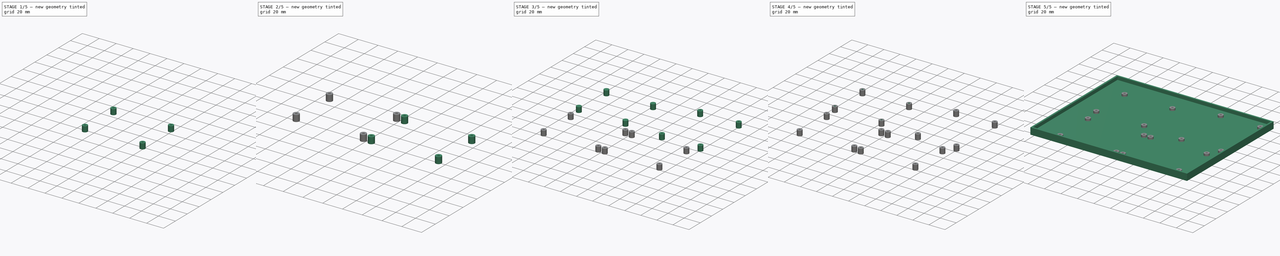
[diagram: build sequence overview — one tinted view per stage of 5, left to right]
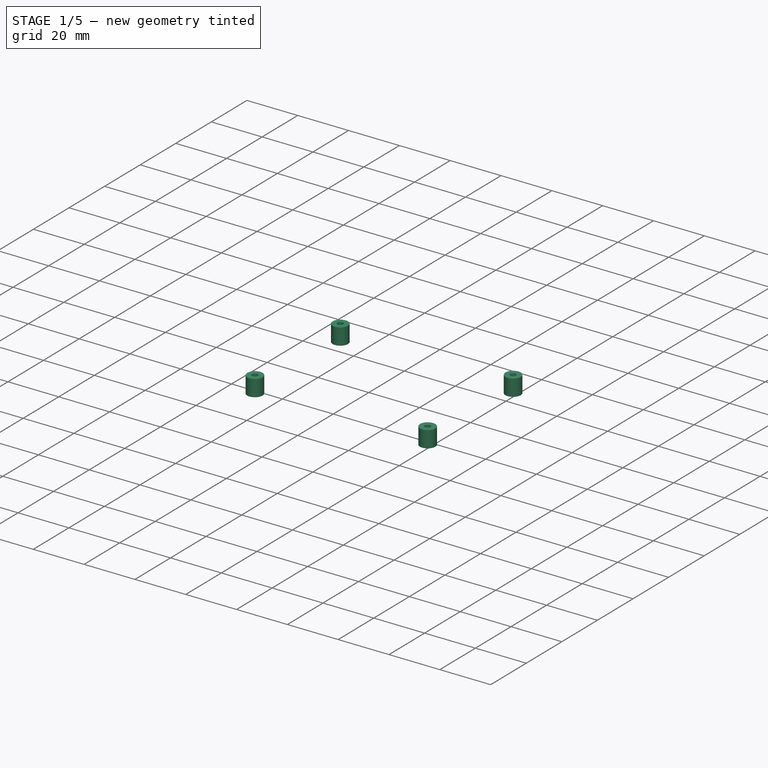
[diagram: stage 1 of 5 — iso view after this stage's code; geometry added in this stage tinted green]
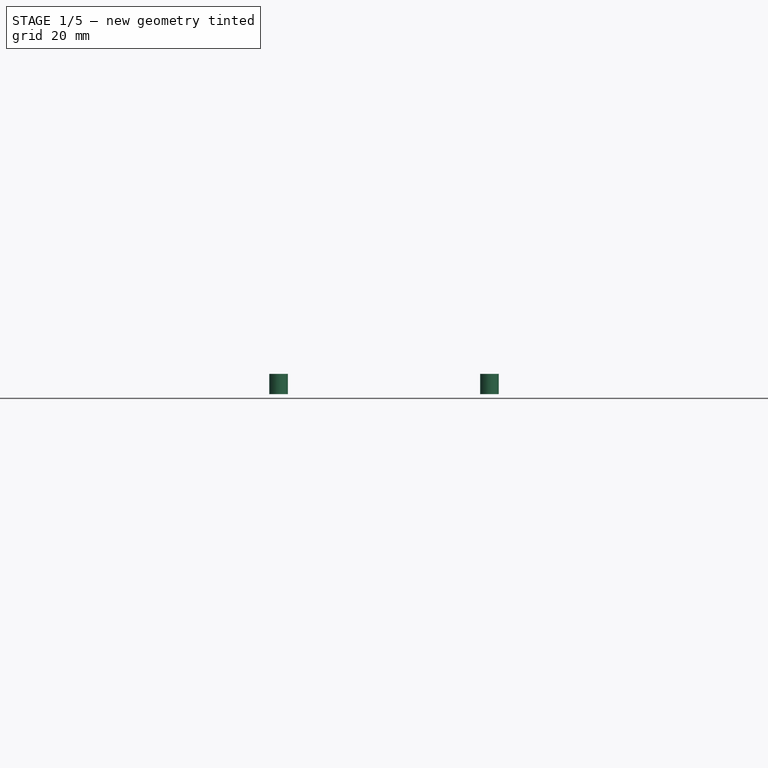
[diagram: stage 1 of 5 — front view after this stage's code; geometry added in this stage tinted green]
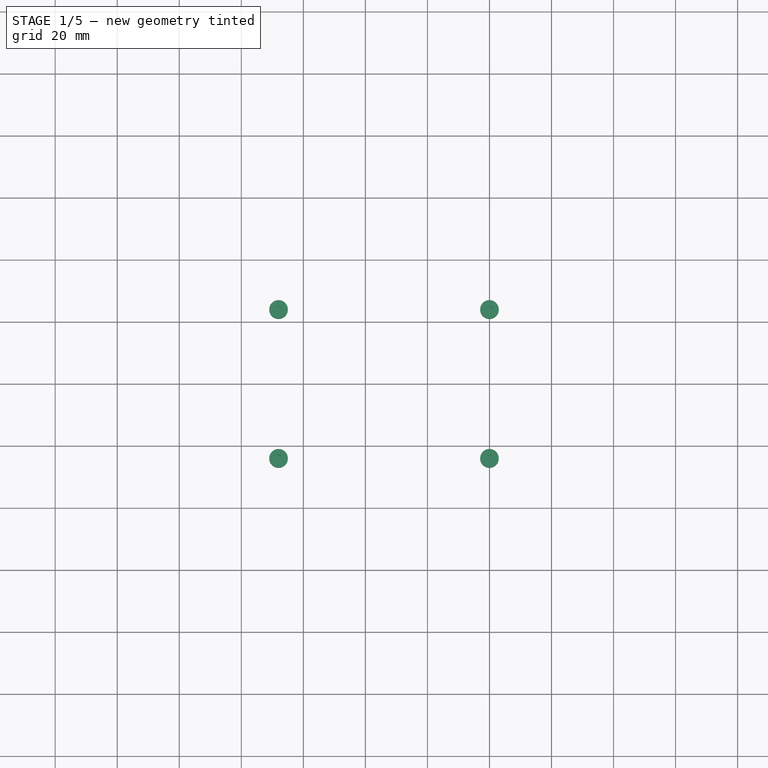
[diagram: stage 1 of 5 — top view after this stage's code; geometry added in this stage tinted green]
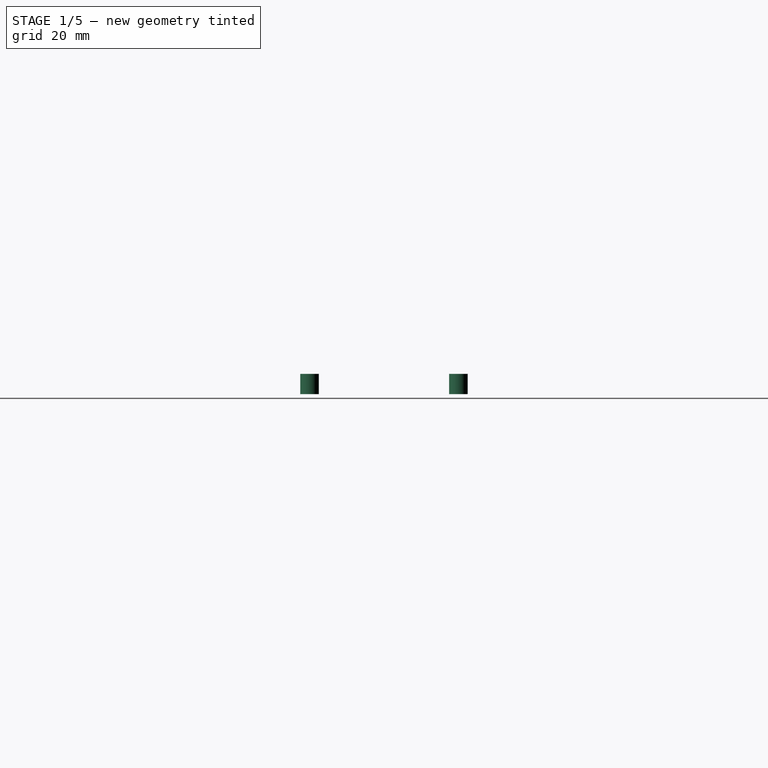
[diagram: stage 1 of 5 — right view after this stage's code; geometry added in this stage tinted green]
FCSTD DOCUMENT  (FreeCAD 0.15R4671 (Git))
Label: Test01
License: All rights reserved
LicenseURL: http://en.wikipedia.org/wiki/All_rights_reserved
objects: Sketcher::SketchObject×10, PartDesign::Pad×10, Part::Cut×4, Part::MultiFuse×2
note: 36 computed .brp shape members not serialized (recipe doc carries the construction recipe); baked Part::Feature solids carry a one-line shape summary decoded from their .brp

FEATURE [Sketcher::SketchObject] Sketch008  label="Relay1 Inner holes002"
  Placement = pos=(0,0,2.5) rot=(0,0,1;0rad)
  sketch-geometry (4):
    g0: Circle CenterX=32 CenterY=-96 CenterZ=0 NormalX=0 NormalY=0 NormalZ=1 Radius=1.1
    g1: Circle CenterX=100 CenterY=-96 CenterZ=0 NormalX=0 NormalY=0 NormalZ=1 Radius=1.1
    g2: Circle CenterX=32 CenterY=-144 CenterZ=0 NormalX=0 NormalY=0 NormalZ=1 Radius=1.1
    g3: Circle CenterX=100 CenterY=-144 CenterZ=0 NormalX=0 NormalY=0 NormalZ=1 Radius=1.1
  constraints (12):
    c: Distance(g0,g1) = 68
    c: DistanceY(g0,g1) = 0
    c: DistanceY(g2,g3) = 0
    c: DistanceX(g2,g0) = 0
    c: DistanceX(g3,g1) = 0
    c: DistanceY(g2,g0) = 48
    c: Radius(g2) = 1.1
    c: Equal(g2,g0)
    c: Equal(g2,g1)
    c: Equal(g2,g3)
    c: DistanceX(g-1,g1) = 100
    c: DistanceY(g-1,g0) = -96
FEATURE [Sketcher::SketchObject] Sketch009  label="Relay1 Outer holes002"
  sketch-geometry (4):
    g0: Circle CenterX=32 CenterY=-96 CenterZ=0 NormalX=0 NormalY=0 NormalZ=1 Radius=3
    g1: Circle CenterX=100 CenterY=-96 CenterZ=0 NormalX=0 NormalY=0 NormalZ=1 Radius=3
    g2: Circle CenterX=32 CenterY=-144 CenterZ=0 NormalX=0 NormalY=0 NormalZ=1 Radius=3
    g3: Circle CenterX=100 CenterY=-144 CenterZ=0 NormalX=0 NormalY=0 NormalZ=1 Radius=3
  constraints (12):
    c: Distance(g0,g1) = 68
    c: DistanceY(g0,g1) = 0
    c: DistanceY(g2,g3) = 0
    c: DistanceX(g2,g0) = 0
    c: DistanceX(g3,g1) = 0
    c: DistanceY(g2,g0) = 48
    c: Radius(g2) = 3
    c: Equal(g2,g0)
    c: Equal(g2,g1)
    c: Equal(g2,g3)
    c: DistanceX(g-1,g1) = 100
    c: DistanceY(g-1,g0) = -96
FEATURE [PartDesign::Pad] Pad008
  Length = 6.5
  Length2 = 100
  Placement = pos=(0,0,2.5) rot=(0,0,1;0rad)
  Sketch = -> Sketch008
  Type = 0
FEATURE [PartDesign::Pad] Pad009
  Length = 6.5
  Length2 = 100
  Sketch = -> Sketch009
  Type = 0
FEATURE [Part::Cut] Cut003  label="Relay003"
  Base = -> Pad009
  Tool = -> Pad008
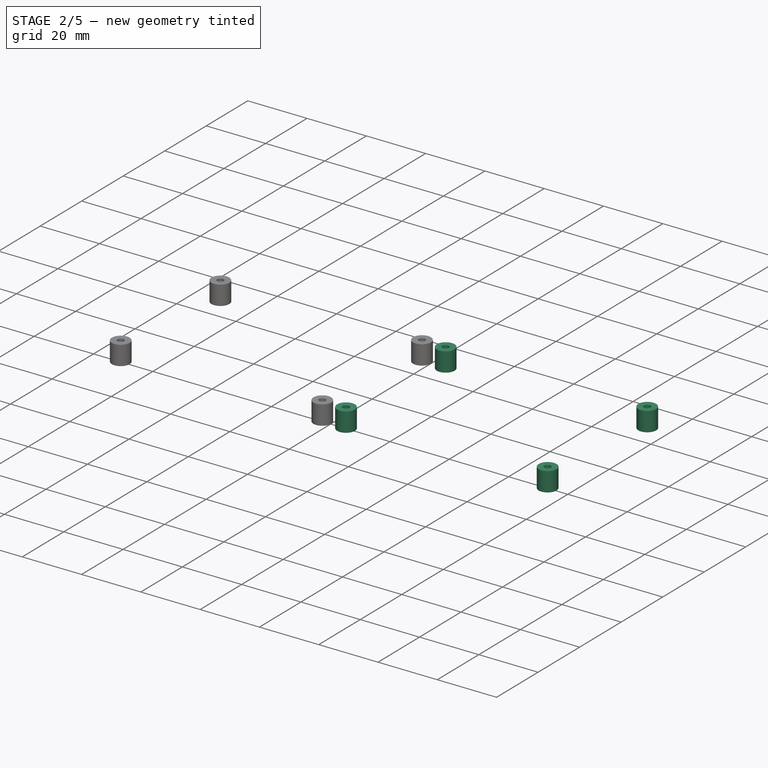
[diagram: stage 2 of 5 — iso view after this stage's code; geometry added in this stage tinted green]
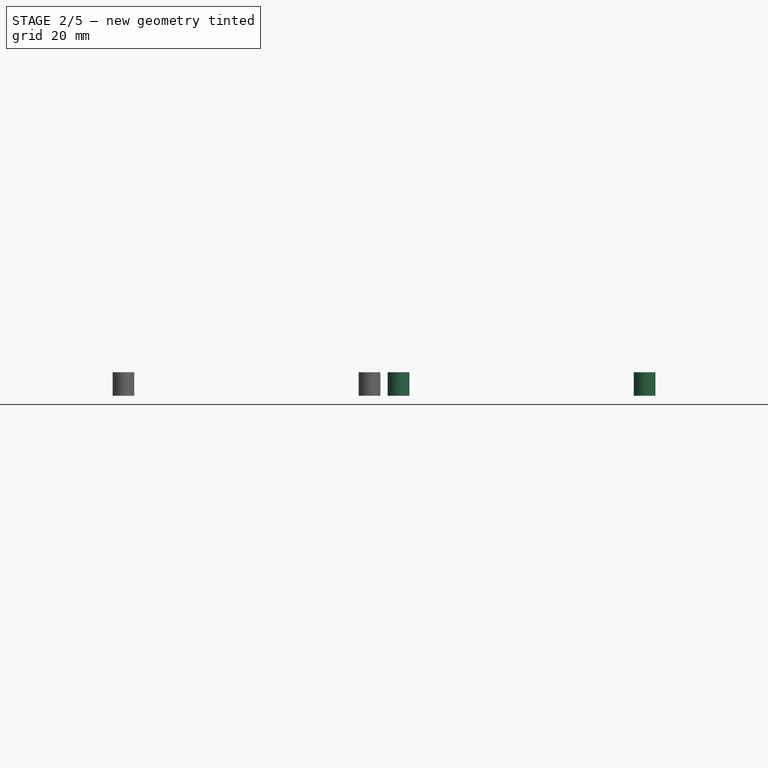
[diagram: stage 2 of 5 — front view after this stage's code; geometry added in this stage tinted green]
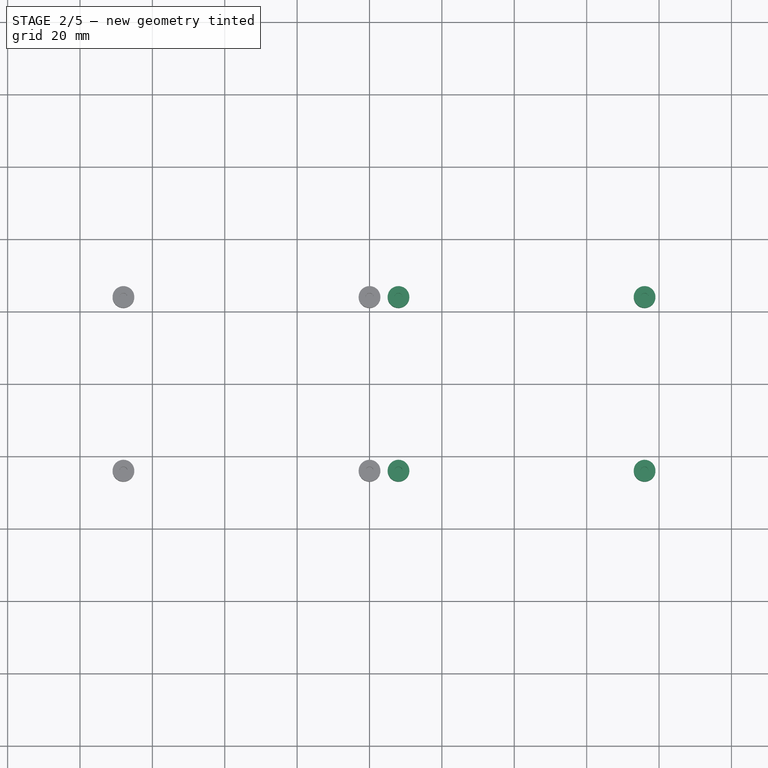
[diagram: stage 2 of 5 — top view after this stage's code; geometry added in this stage tinted green]
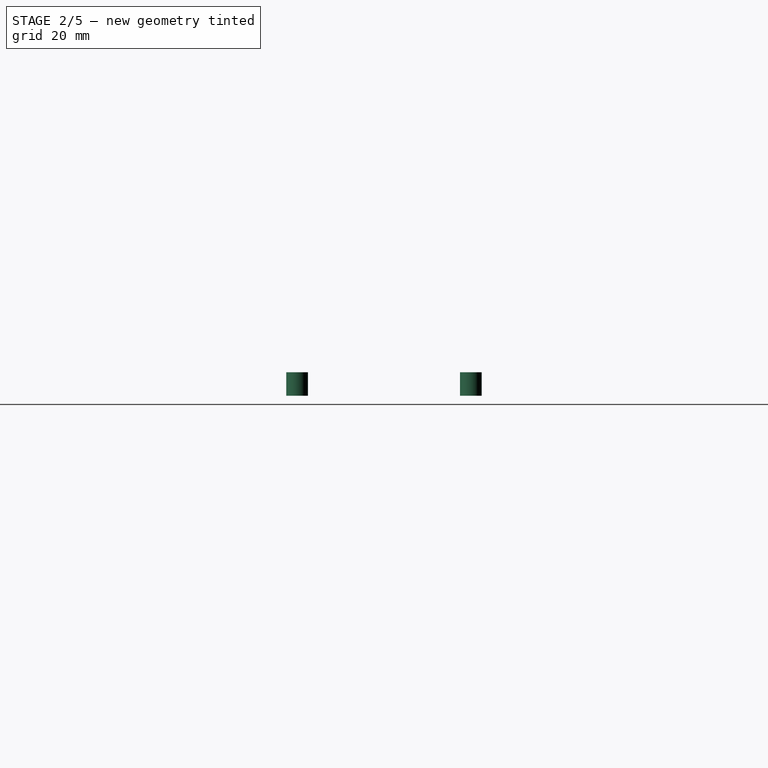
[diagram: stage 2 of 5 — right view after this stage's code; geometry added in this stage tinted green]
FEATURE [Sketcher::SketchObject] Sketch006  label="Relay1 Inner holes001"
  Placement = pos=(0,0,2.5) rot=(0,0,1;0rad)
  sketch-geometry (4):
    g0: Circle CenterX=108 CenterY=-96 CenterZ=0 NormalX=0 NormalY=0 NormalZ=1 Radius=1.1
    g1: Circle CenterX=176 CenterY=-96 CenterZ=0 NormalX=0 NormalY=0 NormalZ=1 Radius=1.1
    g2: Circle CenterX=108 CenterY=-144 CenterZ=0 NormalX=0 NormalY=0 NormalZ=1 Radius=1.1
    g3: Circle CenterX=176 CenterY=-144 CenterZ=0 NormalX=0 NormalY=0 NormalZ=1 Radius=1.1
  constraints (12):
    c: Distance(g0,g1) = 68
    c: DistanceY(g0,g1) = 0
    c: DistanceY(g2,g3) = 0
    c: DistanceX(g2,g0) = 0
    c: DistanceX(g3,g1) = 0
    c: DistanceY(g2,g0) = 48
    c: Radius(g2) = 1.1
    c: Equal(g2,g0)
    c: Equal(g2,g1)
    c: Equal(g2,g3)
    c: DistanceX(g-1,g1) = 176
    c: DistanceY(g-1,g0) = -96
FEATURE [Sketcher::SketchObject] Sketch007  label="Relay1 Outer holes001"
  sketch-geometry (4):
    g0: Circle CenterX=108 CenterY=-96 CenterZ=0 NormalX=0 NormalY=0 NormalZ=1 Radius=3
    g1: Circle CenterX=176 CenterY=-96 CenterZ=0 NormalX=0 NormalY=0 NormalZ=1 Radius=3
    g2: Circle CenterX=108 CenterY=-144 CenterZ=0 NormalX=0 NormalY=0 NormalZ=1 Radius=3
    g3: Circle CenterX=176 CenterY=-144 CenterZ=0 NormalX=0 NormalY=0 NormalZ=1 Radius=3
  constraints (12):
    c: Distance(g0,g1) = 68
    c: DistanceY(g0,g1) = 0
    c: DistanceY(g2,g3) = 0
    c: DistanceX(g2,g0) = 0
    c: DistanceX(g3,g1) = 0
    c: DistanceY(g2,g0) = 48
    c: Radius(g2) = 3
    c: Equal(g2,g0)
    c: Equal(g2,g1)
    c: Equal(g2,g3)
    c: DistanceX(g-1,g1) = 176
    c: DistanceY(g-1,g0) = -96
FEATURE [PartDesign::Pad] Pad006
  Length = 6.5
  Length2 = 100
  Placement = pos=(0,0,2.5) rot=(0,0,1;0rad)
  Sketch = -> Sketch006
  Type = 0
FEATURE [PartDesign::Pad] Pad007
  Length = 6.5
  Length2 = 100
  Sketch = -> Sketch007
  Type = 0
FEATURE [Part::Cut] Cut002  label="Relay002"
  Base = -> Pad007
  Tool = -> Pad006
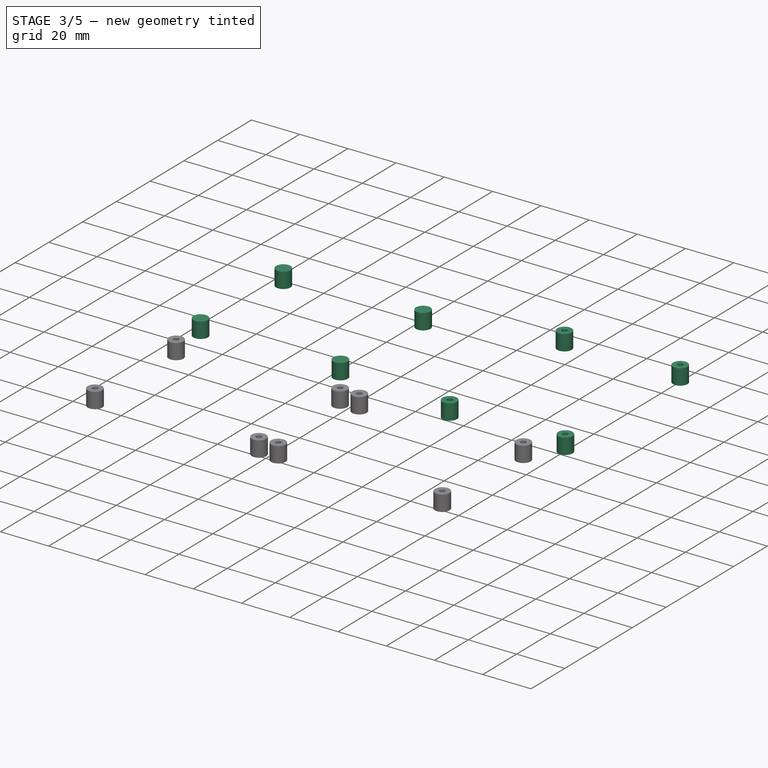
[diagram: stage 3 of 5 — iso view after this stage's code; geometry added in this stage tinted green]
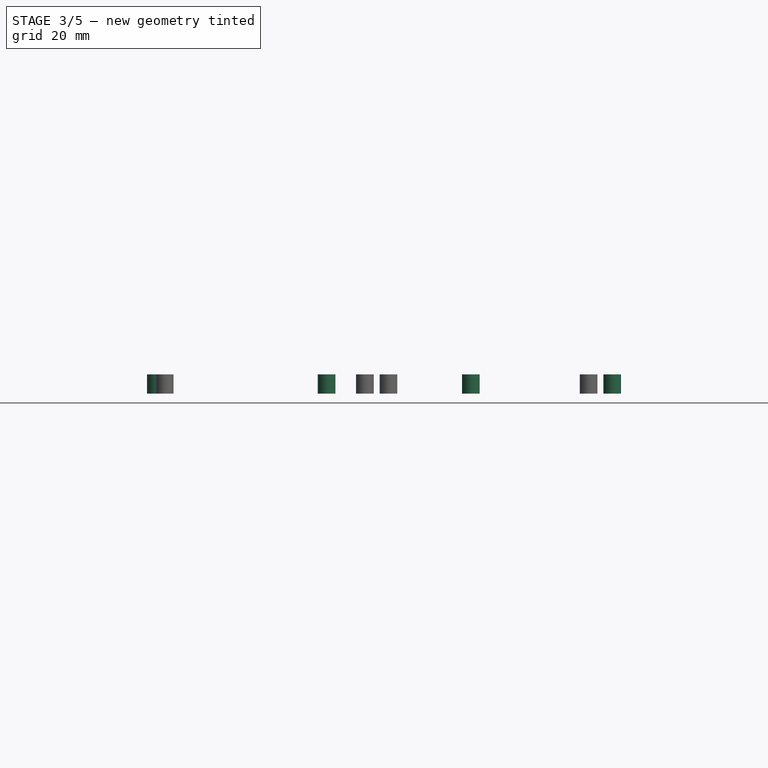
[diagram: stage 3 of 5 — front view after this stage's code; geometry added in this stage tinted green]
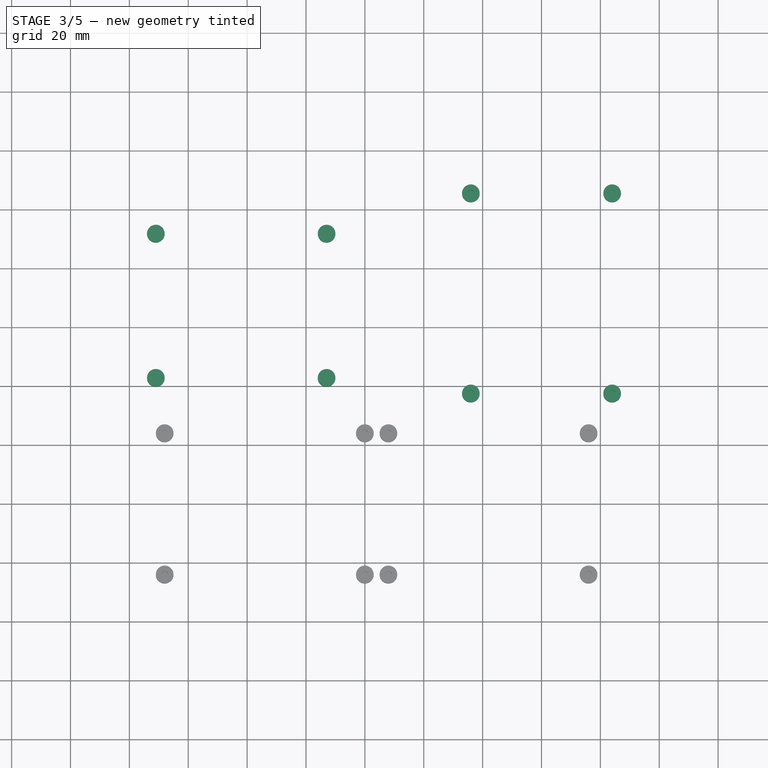
[diagram: stage 3 of 5 — top view after this stage's code; geometry added in this stage tinted green]
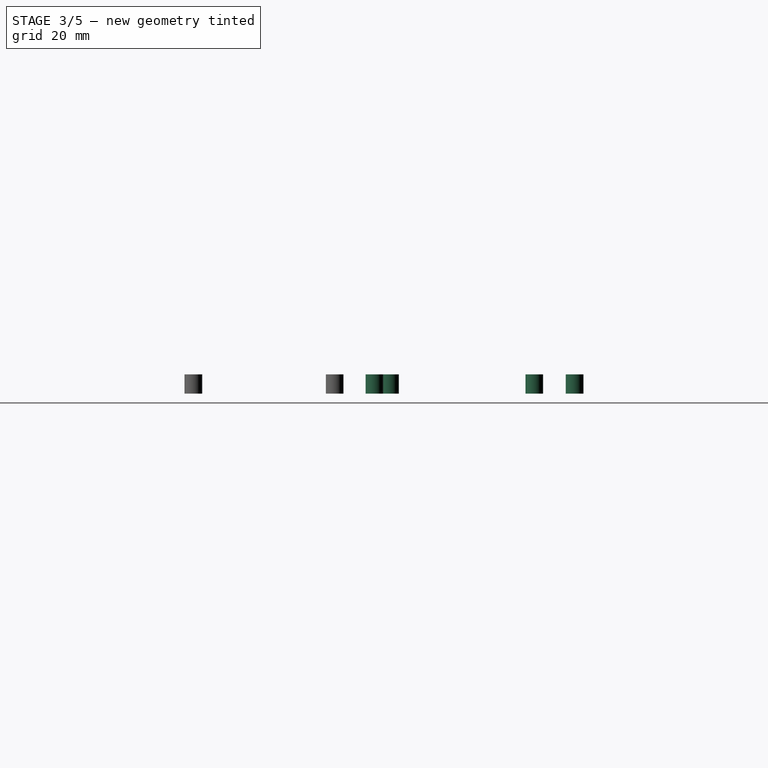
[diagram: stage 3 of 5 — right view after this stage's code; geometry added in this stage tinted green]
FEATURE [Sketcher::SketchObject] Sketch003  label="Raspberry Outer Holes"
  sketch-geometry (4):
    g0: Circle CenterX=29 CenterY=-28.2 CenterZ=0 NormalX=0 NormalY=0 NormalZ=1 Radius=3
    g1: Circle CenterX=87 CenterY=-28.2 CenterZ=0 NormalX=0 NormalY=0 NormalZ=1 Radius=3
    g2: Circle CenterX=87 CenterY=-77.2 CenterZ=0 NormalX=0 NormalY=0 NormalZ=1 Radius=3
    g3: Circle CenterX=29 CenterY=-77.2 CenterZ=0 NormalX=0 NormalY=0 NormalZ=1 Radius=3
  constraints (12):
    c: DistanceX(g0,g1) = 58
    c: DistanceY(g0,g3) = -49
    c: DistanceY(g0,g1) = 0
    c: DistanceY(g3,g2) = 0
    c: DistanceX(g1,g2) = 0
    c: DistanceX(g0,g3) = 0
    c: Radius(g0) = 3
    c: Equal(g0,g3)
    c: Equal(g0,g2)
    c: Equal(g0,g1)
    c: DistanceX(g0) = 29
    c: DistanceY(g-1,g0) = -28.2
FEATURE [PartDesign::Pad] Pad003
  Length = 6.5
  Length2 = 100
  Sketch = -> Sketch003
  Type = 0
FEATURE [Sketcher::SketchObject] Sketch004  label="Relay1 Inner holes"
  Placement = pos=(0,0,2.5) rot=(0,0,1;0rad)
  sketch-geometry (4):
    g0: Circle CenterX=136 CenterY=-14.5 CenterZ=0 NormalX=0 NormalY=0 NormalZ=1 Radius=1.1
    g1: Circle CenterX=184 CenterY=-14.5 CenterZ=0 NormalX=0 NormalY=0 NormalZ=1 Radius=1.1
    g2: Circle CenterX=136 CenterY=-82.5 CenterZ=0 NormalX=0 NormalY=0 NormalZ=1 Radius=1.1
    g3: Circle CenterX=184 CenterY=-82.5 CenterZ=0 NormalX=0 NormalY=0 NormalZ=1 Radius=1.1
  constraints (12):
    c: Distance(g0,g1) = 48
    c: DistanceY(g0,g1) = 0
    c: DistanceY(g2,g3) = 0
    c: DistanceX(g2,g0) = 0
    c: DistanceX(g3,g1) = 0
    c: DistanceY(g2,g0) = 68
    c: Radius(g2) = 1.1
    c: Equal(g2,g0)
    c: Equal(g2,g1)
    c: Equal(g2,g3)
    c: DistanceX(g-1,g1) = 184
    c: DistanceY(g-1,g0) = -14.5
FEATURE [Sketcher::SketchObject] Sketch005  label="Relay1 Outer holes"
  sketch-geometry (4):
    g0: Circle CenterX=136 CenterY=-14.5 CenterZ=0 NormalX=0 NormalY=0 NormalZ=1 Radius=3
    g1: Circle CenterX=184 CenterY=-14.5 CenterZ=0 NormalX=0 NormalY=0 NormalZ=1 Radius=3
    g2: Circle CenterX=136 CenterY=-82.5 CenterZ=0 NormalX=0 NormalY=0 NormalZ=1 Radius=3
    g3: Circle CenterX=184 CenterY=-82.5 CenterZ=0 NormalX=0 NormalY=0 NormalZ=1 Radius=3
  constraints (12):
    c: Distance(g0,g1) = 48
    c: DistanceY(g0,g1) = 0
    c: DistanceY(g2,g3) = 0
    c: DistanceX(g2,g0) = 0
    c: DistanceX(g3,g1) = 0
    c: DistanceY(g2,g0) = 68
    c: Radius(g2) = 3
    c: Equal(g2,g0)
    c: Equal(g2,g1)
    c: Equal(g2,g3)
    c: DistanceX(g-1,g1) = 184
    c: DistanceY(g-1,g0) = -14.5
FEATURE [PartDesign::Pad] Pad004
  Length = 6.5
  Length2 = 100
  Placement = pos=(0,0,2.5) rot=(0,0,1;0rad)
  Sketch = -> Sketch004
  Type = 0
FEATURE [PartDesign::Pad] Pad005
  Length = 6.5
  Length2 = 100
  Sketch = -> Sketch005
  Type = 0
FEATURE [Part::Cut] Cut001  label="Relay1"
  Base = -> Pad005
  Tool = -> Pad004
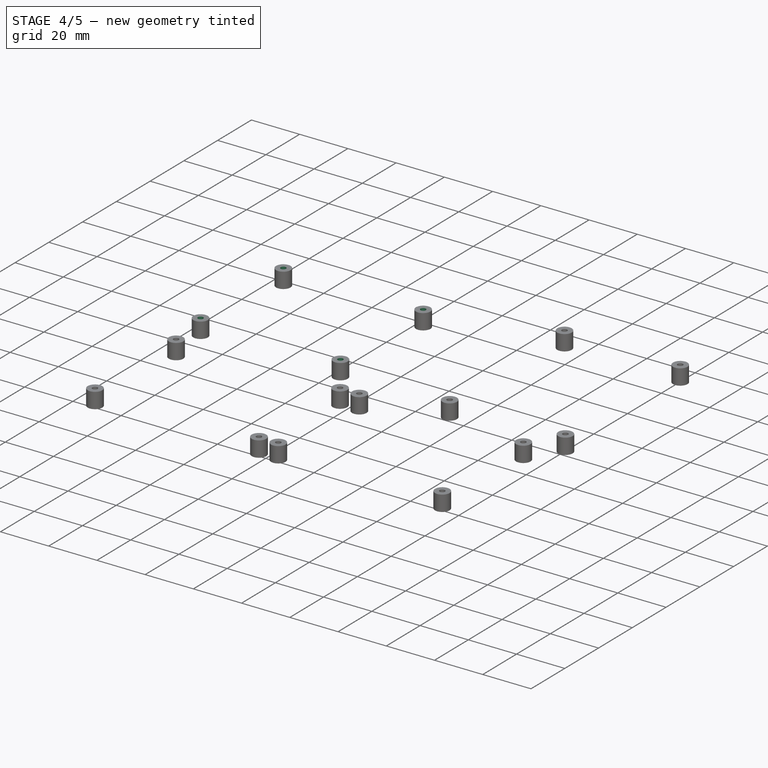
[diagram: stage 4 of 5 — iso view after this stage's code; geometry added in this stage tinted green]
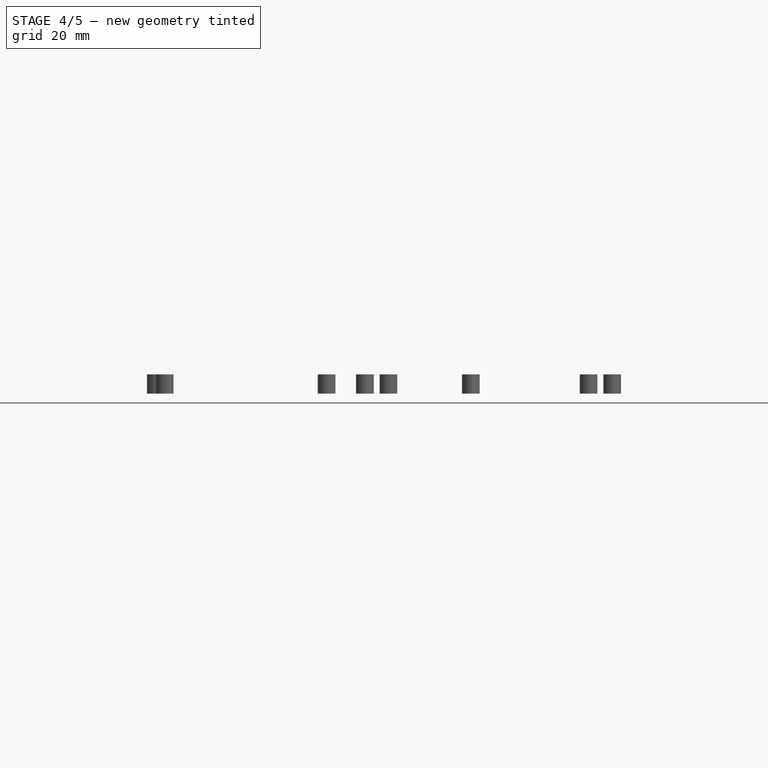
[diagram: stage 4 of 5 — front view after this stage's code; geometry added in this stage tinted green]
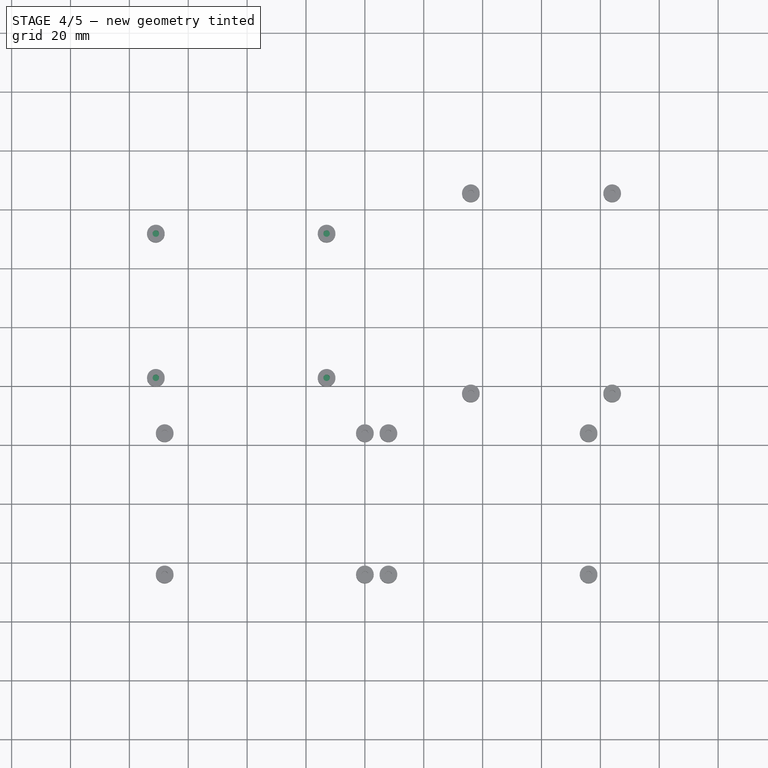
[diagram: stage 4 of 5 — top view after this stage's code; geometry added in this stage tinted green]
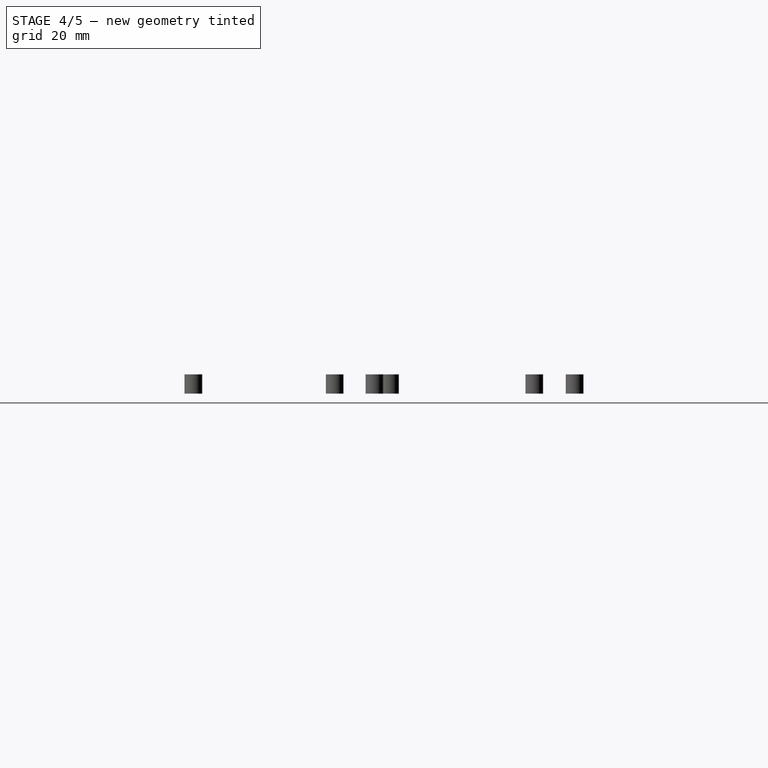
[diagram: stage 4 of 5 — right view after this stage's code; geometry added in this stage tinted green]
FEATURE [PartDesign::Pad] Pad002
  Length = 6.5
  Length2 = 100
  Placement = pos=(0,0,2.5) rot=(0,0,1;0rad)
  Sketch = -> Sketch001
  Type = 0
FEATURE [Part::Cut] Cut
  Base = -> Pad003
  Tool = -> Pad002
FEATURE [Part::MultiFuse] Fusion001
  Shapes = -> [Cut,Cut002,Cut003,Cut001]
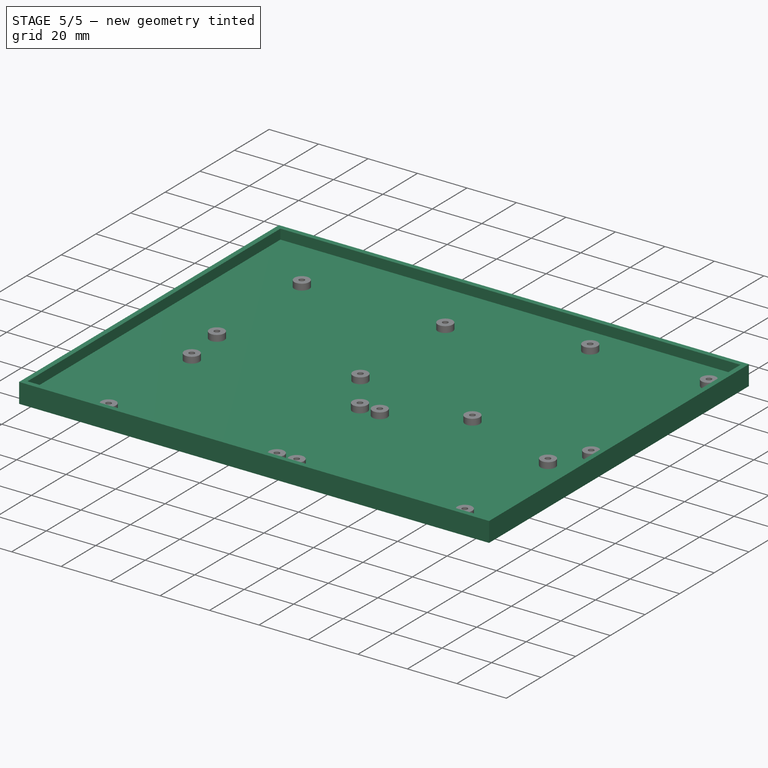
[diagram: stage 5 of 5 — iso view after this stage's code; geometry added in this stage tinted green]
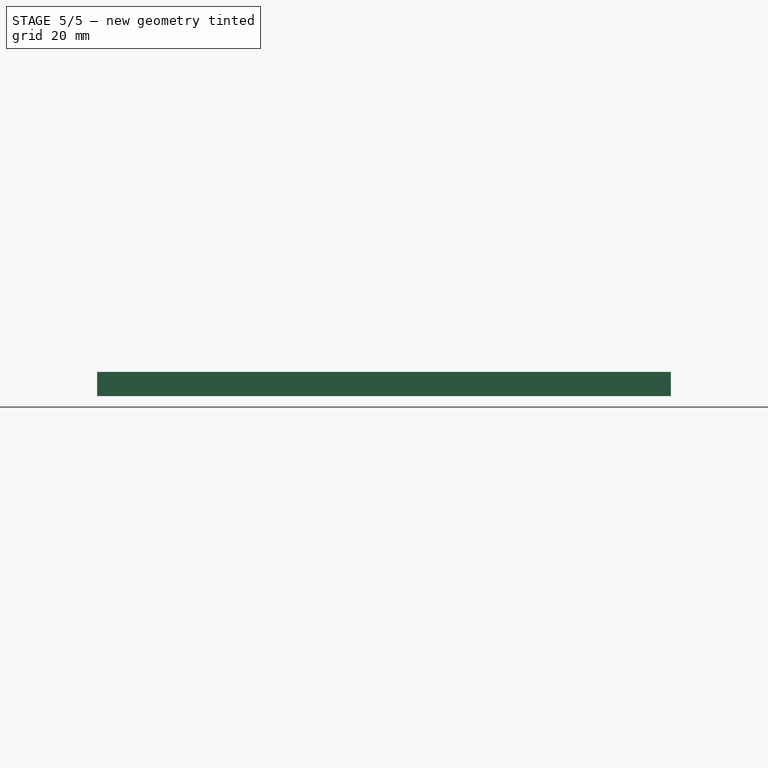
[diagram: stage 5 of 5 — front view after this stage's code; geometry added in this stage tinted green]
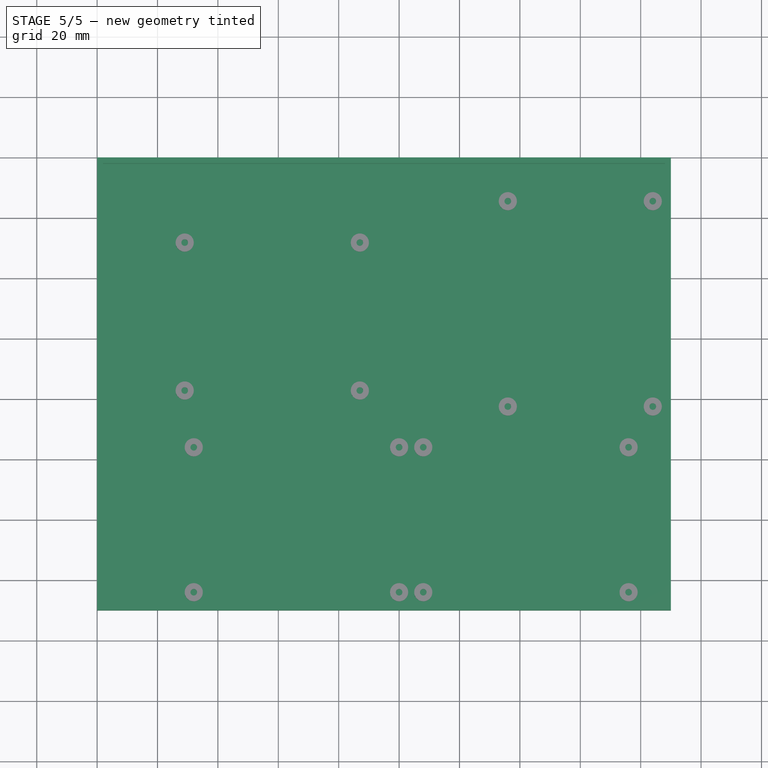
[diagram: stage 5 of 5 — top view after this stage's code; geometry added in this stage tinted green]
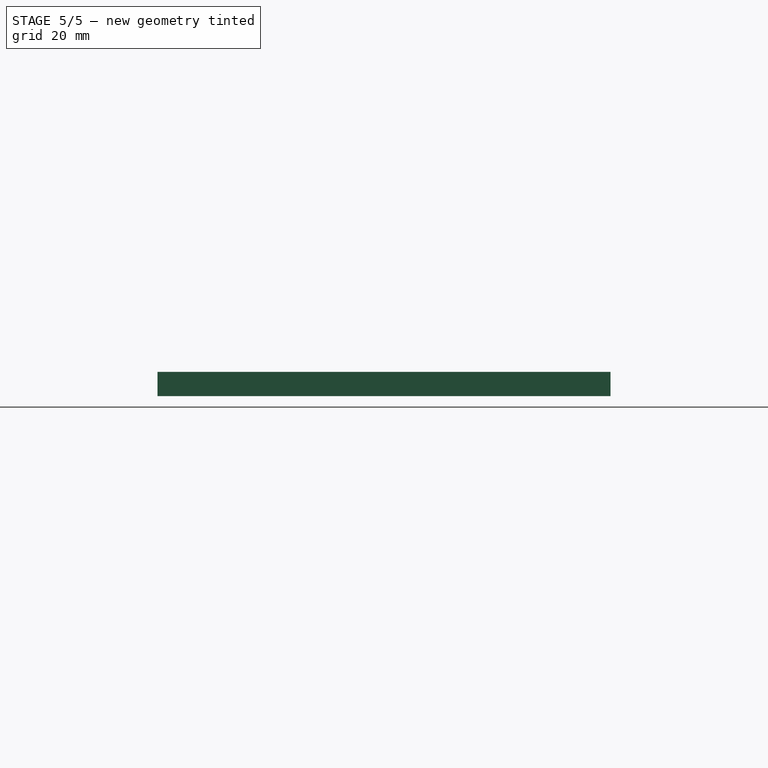
[diagram: stage 5 of 5 — right view after this stage's code; geometry added in this stage tinted green]
FEATURE [Sketcher::SketchObject] Sketch  label="Base"
  sketch-geometry (4):
    g0: LineSegment StartX=0 StartY=0 StartZ=0 EndX=190 EndY=0 EndZ=0
    g1: LineSegment StartX=190 StartY=0 StartZ=0 EndX=190 EndY=-150 EndZ=0
    g2: LineSegment StartX=190 StartY=-150 StartZ=0 EndX=0 EndY=-150 EndZ=0
    g3: LineSegment StartX=0 StartY=-150 StartZ=0 EndX=0 EndY=0 EndZ=0
  constraints (11):
    c: Coincident(g0,g1)
    c: Coincident(g1,g2)
    c: Coincident(g2,g3)
    c: Coincident(g3,g0)
    c: Horizontal(g0)
    c: Horizontal(g2)
    c: Vertical(g1)
    c: Vertical(g3)
    c: Distance(g1) = 150
    c: Distance(g0) = 190
    c: Coincident(g0,g-1)
FEATURE [Sketcher::SketchObject] Sketch001  label="Raspberry Inner Holes"
  Placement = pos=(0,0,2.5) rot=(0,0,1;0rad)
  sketch-geometry (4):
    g0: Circle CenterX=29 CenterY=-28.2 CenterZ=0 NormalX=0 NormalY=0 NormalZ=1 Radius=1.1
    g1: Circle CenterX=29 CenterY=-77.2 CenterZ=0 NormalX=0 NormalY=0 NormalZ=1 Radius=1.1
    g2: Circle CenterX=87 CenterY=-28.2 CenterZ=0 NormalX=0 NormalY=0 NormalZ=1 Radius=1.1
    g3: Circle CenterX=87 CenterY=-77.2 CenterZ=0 NormalX=0 NormalY=0 NormalZ=1 Radius=1.1
  constraints (12):
    c: DistanceX(g0,g2) = 58
    c: DistanceY(g2,g0) = 0
    c: DistanceX(g0,g1) = 0
    c: DistanceX(g3,g2) = 0
    c: DistanceY(g3,g1) = 0
    c: Equal(g3,g2)
    c: Radius(g0) = 1.1
    c: Equal(g0,g2)
    c: Equal(g0,g1)
    c: DistanceY(g-1,g0) = -28.2
    c: DistanceY(g2,g3) = -49
    c: DistanceX(g-1,g0) = 29
FEATURE [Sketcher::SketchObject] Sketch002  label="Border"
  sketch-geometry (8):
    g0: LineSegment StartX=0 StartY=0 StartZ=0 EndX=190 EndY=0 EndZ=0
    g1: LineSegment StartX=190 StartY=0 StartZ=0 EndX=190 EndY=-150 EndZ=0
    g2: LineSegment StartX=190 StartY=-150 StartZ=0 EndX=0 EndY=-150 EndZ=0
    g3: LineSegment StartX=0 StartY=-150 StartZ=0 EndX=0 EndY=0 EndZ=0
    g4: LineSegment StartX=2 StartY=-2 StartZ=0 EndX=188 EndY=-2 EndZ=0
    g5: LineSegment StartX=188 StartY=-2 StartZ=0 EndX=188 EndY=-148 EndZ=0
    g6: LineSegment StartX=188 StartY=-148 StartZ=0 EndX=2 EndY=-148 EndZ=0
    g7: LineSegment StartX=2 StartY=-148 StartZ=0 EndX=2 EndY=-2 EndZ=0
  constraints (23):
    c: Coincident(g0,g1)
    c: Coincident(g1,g2)
    c: Coincident(g2,g3)
    c: Coincident(g3,g0)
    c: Horizontal(g0)
    c: Horizontal(g2)
    c: Vertical(g1)
    c: Vertical(g3)
    c: Coincident(g0,g-1)
    c: Distance(g1) = 150
    c: Distance(g2) = 190
    c: Coincident(g4,g5)
    c: Coincident(g5,g6)
    c: Coincident(g6,g7)
    c: Coincident(g7,g4)
    c: Horizontal(g4)
    c: Horizontal(g6)
    c: Vertical(g5)
    c: Vertical(g7)
    c: DistanceY(g-1,g4) = -2
    c: DistanceX(g-1,g4) = 2
    c: DistanceY(g5,g1) = -2
    c: DistanceX(g5,g1) = 2
FEATURE [PartDesign::Pad] Pad
  Length = 4
  Length2 = 100
  Sketch = -> Sketch
  Type = 0
FEATURE [PartDesign::Pad] Pad001
  Length = 8
  Length2 = 100
  Sketch = -> Sketch002
  Type = 0
FEATURE [Part::MultiFuse] Fusion
  Shapes = -> [Pad001,Pad]
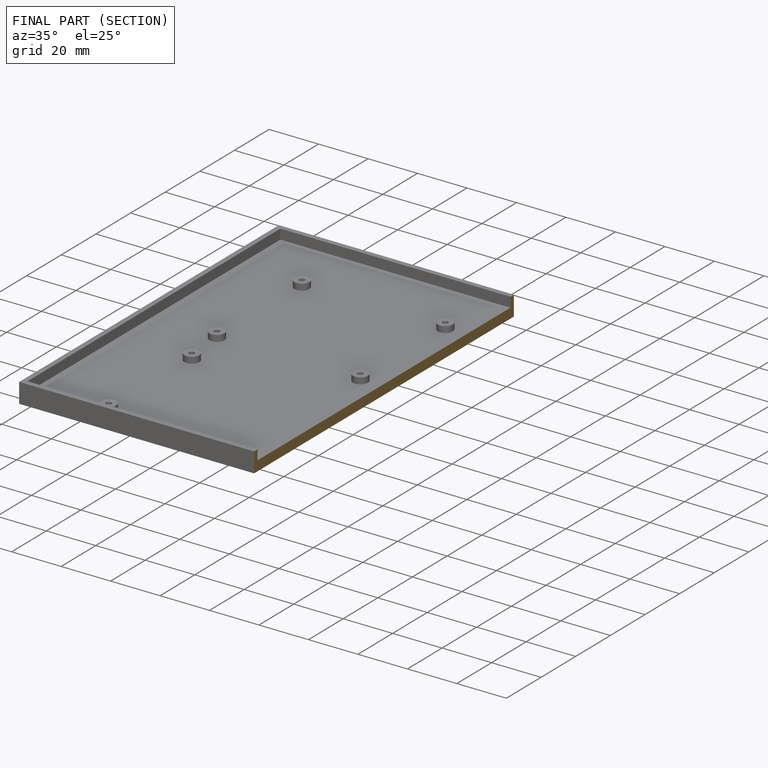
[diagram: finished part — half-section view (interior)]
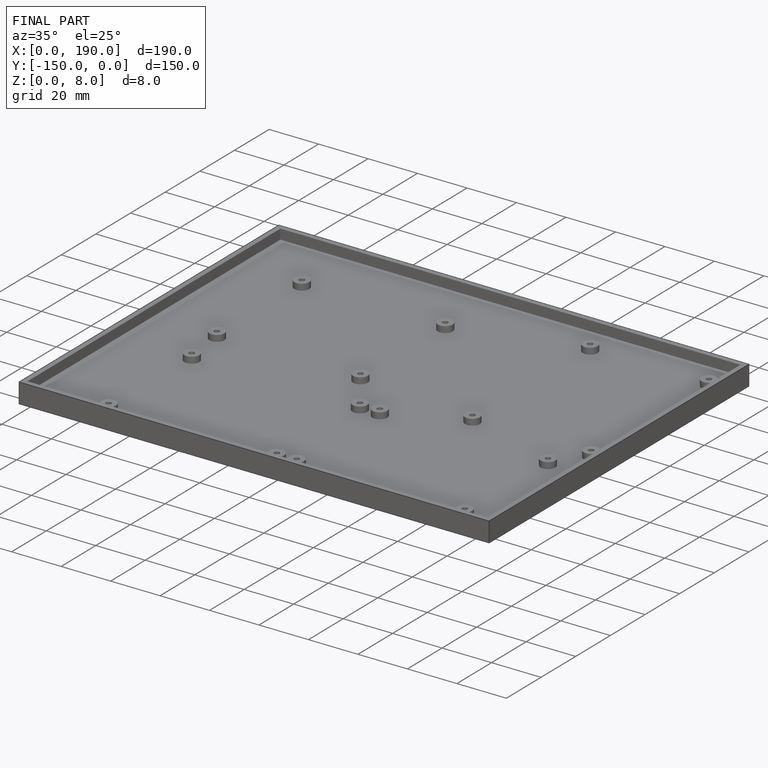
[diagram: finished part — iso view with bounding-box wireframe]
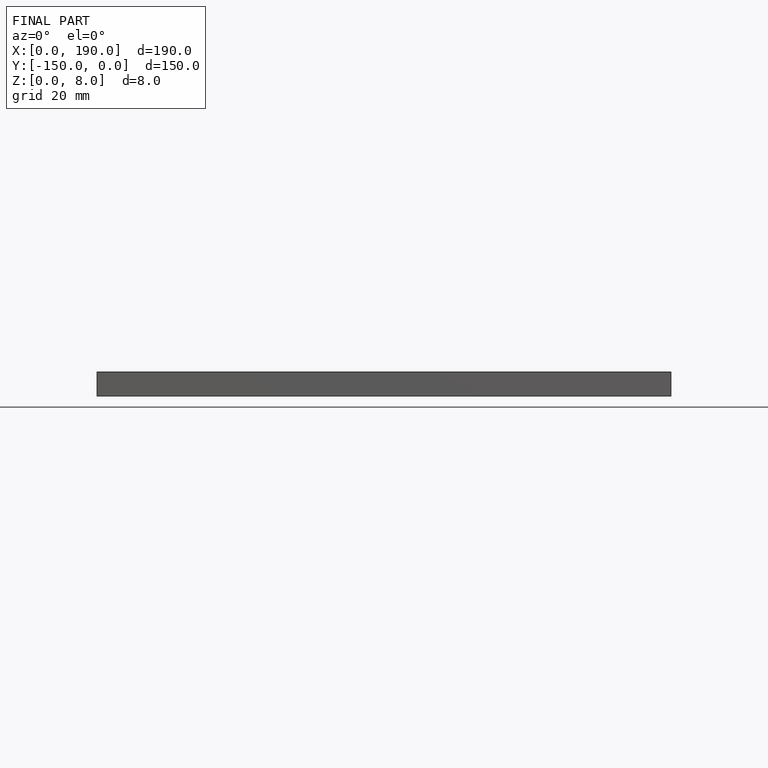
[diagram: finished part — front view with bounding-box wireframe]
